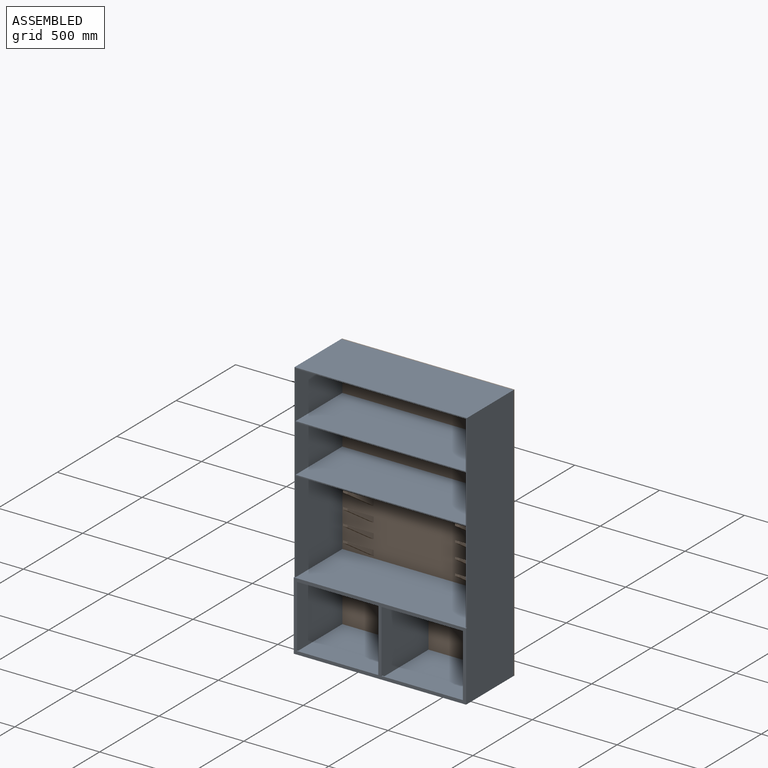
[diagram: assembled view]
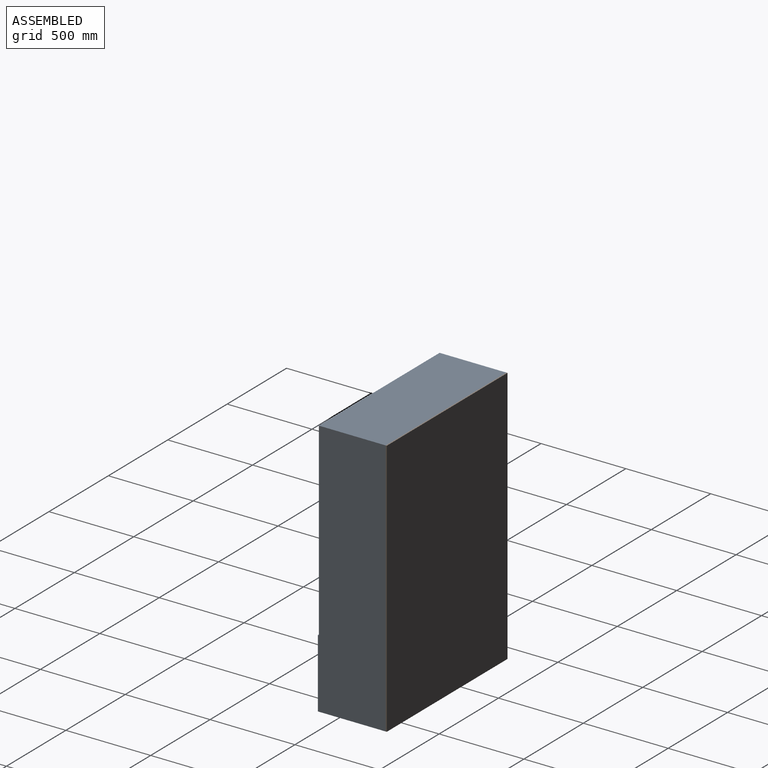
[diagram: assembled view, second angle]
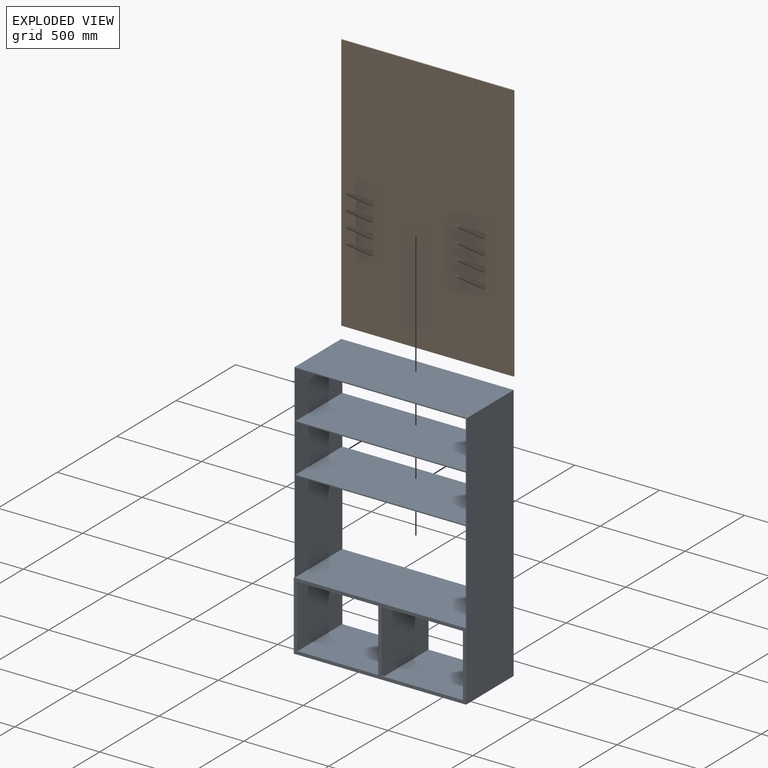
[diagram: exploded view]
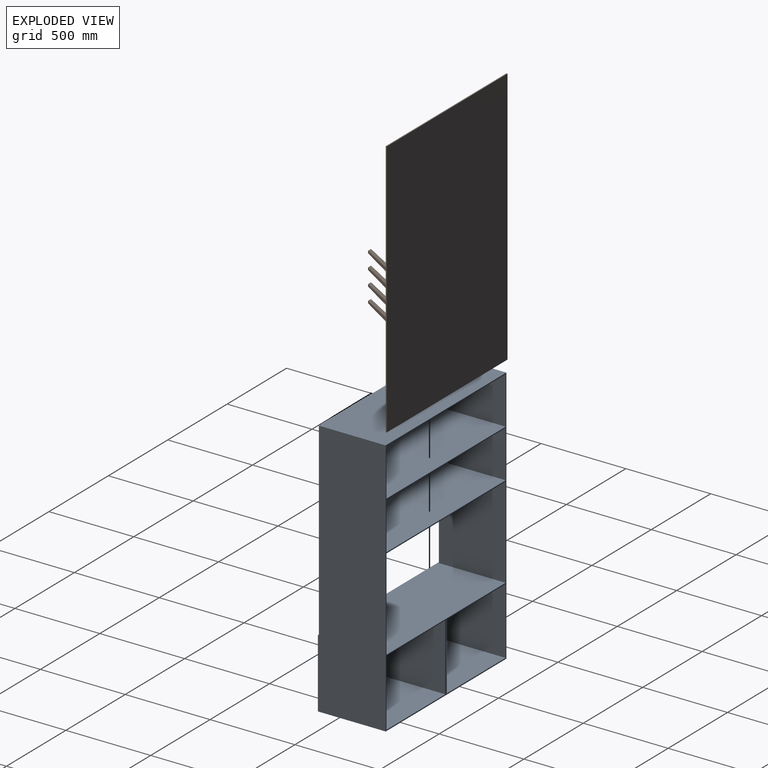
[diagram: exploded view, second angle]
ASSEMBLY  parts=2 mates=3
PART A: 37 faces, bbox 1016x400.1x1524 mm
  f0: plane 393.7x279.4mm, normal (-1,0,0), area 109999.8mm2, adj f1,f23,f24,f25
  f1: plane 1003.3x393.7mm, normal (0,0,1), area 394999.2mm2, adj f0,f2,f24,f25
  f2: plane 393.7x279.4mm, normal (1,0,0), area 109999.8mm2, adj f1,f23,f24,f25
  f3: plane 393.7x279.4mm, normal (-1,0,0), area 109999.8mm2, adj f4,f18,f24,f25
  f4: plane 1003.3x393.7mm, normal (0,0,1), area 394999.2mm2, adj f3,f5,f24,f25
  f5: plane 393.7x279.4mm, normal (1,0,0), area 109999.8mm2, adj f4,f18,f24,f25
  f6: plane 1016x400.05mm, normal (0,0,1), area 401450.8mm2, adj f7,f16,f19,f22,f24,f25,f35
  f7: plane 539.75x393.7mm, normal (1,0,0), area 212499.6mm2, adj f6,f8,f24,f25
  f8: plane 1003.3x393.7mm, normal (0,0,-1), area 394999.2mm2, adj f7,f19,f24,f25
  f9: plane 393.7x393.7mm, normal (-1,0,0), area 154999.7mm2, adj f10,f20,f25,f36
  f10: plane 495.3x393.7mm, normal (0,0,1), area 194999.6mm2, adj f9,f11,f25,f36
  f11: plane 393.7x393.7mm, normal (1,0,0), area 154999.7mm2, adj f10,f20,f25,f36
  f12: plane 393.7x393.7mm, normal (-1,0,0), area 154999.7mm2, adj f13,f21,f25,f26
  f13: plane 495.3x393.7mm, normal (0,0,1), area 194999.6mm2, adj f12,f14,f25,f26
  f14: plane 393.7x393.7mm, normal (1,0,0), area 154999.7mm2, adj f13,f21,f25,f26
  f15: plane 1016x393.7mm, normal (0,0,1), area 399999.2mm2, adj f16,f22,f24,f25
  f16: plane 1524x400.05mm, normal (-1,0,0), area 602579.4mm2, adj f6,f15,f17,f24,f25,f35
  f17: plane 1016x400.05mm, normal (0,0,-1), area 406450.8mm2, adj f16,f22,f25,f35
  f18: plane 1003.3x393.7mm, normal (0,0,-1), area 394999.2mm2, adj f3,f5,f24,f25
  f19: plane 539.75x393.7mm, normal (-1,0,0), area 212499.6mm2, adj f6,f8,f24,f25
  f20: plane 495.3x393.7mm, normal (0,0,-1), area 194999.6mm2, adj f9,f11,f25,f36
  f21: plane 495.3x393.7mm, normal (0,0,-1), area 194999.6mm2, adj f12,f14,f25,f26
  f22: plane 1524x400.05mm, normal (1,0,0), area 602579.4mm2, adj f6,f15,f17,f24,f25,f35
  f23: plane 1003.3x393.7mm, normal (0,0,-1), area 394999.2mm2, adj f0,f2,f24,f25
  f24: plane 1117.6x1016mm, normal (0,-1,0), area 33306.4mm2, adj f0,f1,f2,f3,f4,f5,f6,f7
  f25: plane 1524x1016mm, normal (0,1,0), area 56209.6mm2, adj f0,f1,f2,f3,f4,f5,f6,f7
  f26: plane 495.3x393.7mm, normal (0,1,0), area 18427.4mm2, adj f12,f13,f14,f21,f27,f28,f29,f33
  f27: plane 368.3x6.35mm, normal (-1,0,0), area 2338.7mm2, adj f26,f28,f33,f35
  f28: plane 479.43x6.35mm, normal (0,0,1), area 3044.3mm2, adj f26,f27,f29,f35
  f29: plane 368.3x6.35mm, normal (1,0,0), area 2338.7mm2, adj f26,f28,f33,f35
  f30: plane 368.3x6.35mm, normal (-1,0,0), area 2338.7mm2, adj f31,f34,f35,f36
  f31: plane 479.43x6.35mm, normal (0,0,1), area 3044.3mm2, adj f30,f32,f35,f36
  f32: plane 368.3x6.35mm, normal (1,0,0), area 2338.7mm2, adj f31,f34,f35,f36
  f33: plane 479.43x6.35mm, normal (0,0,-1), area 3044.3mm2, adj f26,f27,f29,f35
  f34: plane 479.43x6.35mm, normal (0,0,-1), area 3044.3mm2, adj f30,f32,f35,f36
  f35: plane 1016x406.4mm, normal (0,-1,0), area 59757.9mm2, adj f6,f16,f17,f22,f27,f28,f29,f30
  f36: plane 495.3x393.7mm, normal (0,1,0), area 18427.4mm2, adj f9,f10,f11,f20,f30,f31,f32,f34
PART B: 46 faces, bbox 1016x226.3x1524 mm
  f0: plane 25.4x12.7mm, normal (0,-1,0), area 322.6mm2, adj f9,f23,f30,f31
  f1: plane 25.4x12.7mm, normal (0,-1,0), area 322.6mm2, adj f8,f22,f28,f29
  f2: plane 25.4x12.7mm, normal (0,-1,0), area 322.6mm2, adj f11,f13,f41,f43
  f3: plane 25.4x12.7mm, normal (0,-1,0), area 322.6mm2, adj f10,f12,f40,f42
  f4: plane 25.4x12.7mm, normal (0,-1,0), area 322.6mm2, adj f15,f17,f38,f39
  f5: plane 25.4x12.7mm, normal (0,-1,0), area 322.6mm2, adj f14,f16,f36,f37
  f6: plane 25.4x12.7mm, normal (0,-1,0), area 322.6mm2, adj f19,f21,f34,f35
  f7: plane 25.4x12.7mm, normal (0,-1,0), area 322.6mm2, adj f18,f20,f32,f33
  f8: plane 219.96x146.05mm, normal (0,-0.55,-0.83), area 6706.5mm2, adj f1,f27,f28,f29
  f9: plane 219.96x146.05mm, normal (0,-0.55,-0.83), area 6706.5mm2, adj f0,f27,f30,f31
  f10: plane 219.96x127mm, normal (0,0.5,0.87), area 6451.4mm2, adj f3,f27,f40,f42
  f11: plane 219.96x127mm, normal (0,0.5,0.87), area 6451.4mm2, adj f2,f27,f41,f43
  f12: plane 219.96x146.05mm, normal (0,-0.55,-0.83), area 6706.5mm2, adj f3,f27,f40,f42
  f13: plane 219.96x146.05mm, normal (0,-0.55,-0.83), area 6706.5mm2, adj f2,f27,f41,f43
  f14: plane 219.96x127mm, normal (0,0.5,0.87), area 6451.4mm2, adj f5,f27,f36,f37
  f15: plane 219.96x127mm, normal (0,0.5,0.87), area 6451.4mm2, adj f4,f27,f38,f39
  f16: plane 219.96x146.05mm, normal (0,-0.55,-0.83), area 6706.5mm2, adj f5,f27,f36,f37
  f17: plane 219.96x146.05mm, normal (0,-0.55,-0.83), area 6706.5mm2, adj f4,f27,f38,f39
  f18: plane 219.96x127mm, normal (0,0.5,0.87), area 6451.4mm2, adj f7,f27,f32,f33
  f19: plane 219.96x127mm, normal (0,0.5,0.87), area 6451.4mm2, adj f6,f27,f34,f35
  f20: plane 219.96x146.05mm, normal (0,-0.55,-0.83), area 6706.5mm2, adj f7,f27,f32,f33
  f21: plane 219.96x146.05mm, normal (0,-0.55,-0.83), area 6706.5mm2, adj f6,f27,f34,f35
  f22: plane 219.96x127mm, normal (0,0.5,0.87), area 6451.4mm2, adj f1,f27,f28,f29
  f23: plane 219.96x127mm, normal (0,0.5,0.87), area 6451.4mm2, adj f0,f27,f30,f31
  f24: plane 1524x6.35mm, normal (1,0,0), area 9677.4mm2, adj f26,f27,f44,f45
  f25: plane 1524x6.35mm, normal (-1,0,0), area 9677.4mm2, adj f26,f27,f44,f45
  f26: plane 1524x1016mm, normal (0,1,0), area 1548384mm2, adj f24,f25,f44,f45
  f27: plane 1524x1016mm, normal (0,-1,0), area 1541932.4mm2, adj f8,f9,f10,f11,f12,f13,f14,f15
  f28: plane 219.96x158.75mm, normal (-1,0,0), area 4888.7mm2, adj f1,f8,f22,f27
  f29: plane 219.96x158.75mm, normal (1,0,0), area 4888.7mm2, adj f1,f8,f22,f27
  f30: plane 219.96x158.75mm, normal (-1,0,0), area 4888.7mm2, adj f0,f9,f23,f27
  f31: plane 219.96x158.75mm, normal (1,0,0), area 4888.7mm2, adj f0,f9,f23,f27
  f32: plane 219.96x158.75mm, normal (-1,0,0), area 4888.7mm2, adj f7,f18,f20,f27
  f33: plane 219.96x158.75mm, normal (1,0,0), area 4888.7mm2, adj f7,f18,f20,f27
  f34: plane 219.96x158.75mm, normal (-1,0,0), area 4888.7mm2, adj f6,f19,f21,f27
  f35: plane 219.96x158.75mm, normal (1,0,0), area 4888.7mm2, adj f6,f19,f21,f27
  f36: plane 219.96x158.75mm, normal (-1,0,0), area 4888.7mm2, adj f5,f14,f16,f27
  f37: plane 219.96x158.75mm, normal (1,0,0), area 4888.7mm2, adj f5,f14,f16,f27
  f38: plane 219.96x158.75mm, normal (-1,0,0), area 4888.7mm2, adj f4,f15,f17,f27
  f39: plane 219.96x158.75mm, normal (1,0,0), area 4888.7mm2, adj f4,f15,f17,f27
  f40: plane 219.96x158.75mm, normal (-1,0,0), area 4888.7mm2, adj f3,f10,f12,f27
  f41: plane 219.96x158.75mm, normal (-1,0,0), area 4888.7mm2, adj f2,f11,f13,f27
  f42: plane 219.96x158.75mm, normal (1,0,0), area 4888.7mm2, adj f3,f10,f12,f27
  f43: plane 219.96x158.75mm, normal (1,0,0), area 4888.7mm2, adj f2,f11,f13,f27
  f44: plane 1016x6.35mm, normal (0,0,-1), area 6451.6mm2, adj f24,f25,f26,f27
  f45: plane 1016x6.35mm, normal (0,0,1), area 6451.6mm2, adj f24,f25,f26,f27
PLACE A t=(-333.27,-1192.3,-564.13)mm
PLACE B t=(-333.27,-1185.95,-411.73)mm
MATE planar B.f44 <-> A.f17  axis (0,0,-1) through (-333.27,-1189.12,-767.33)mm
MATE planar B.f27 <-> A.f25  axis (0,-1,0) through (-333.27,-1192.3,-4.52)mm
MATE planar B.f25 <-> A.f16  axis (-1,0,0) through (-841.27,-1189.12,-5.33)mm
